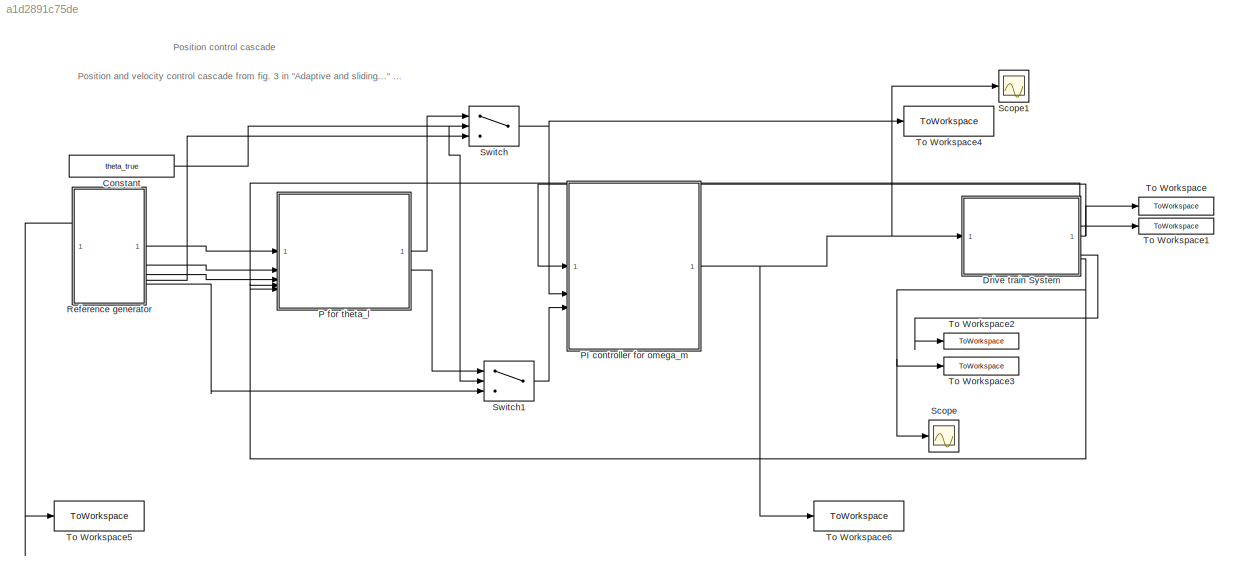
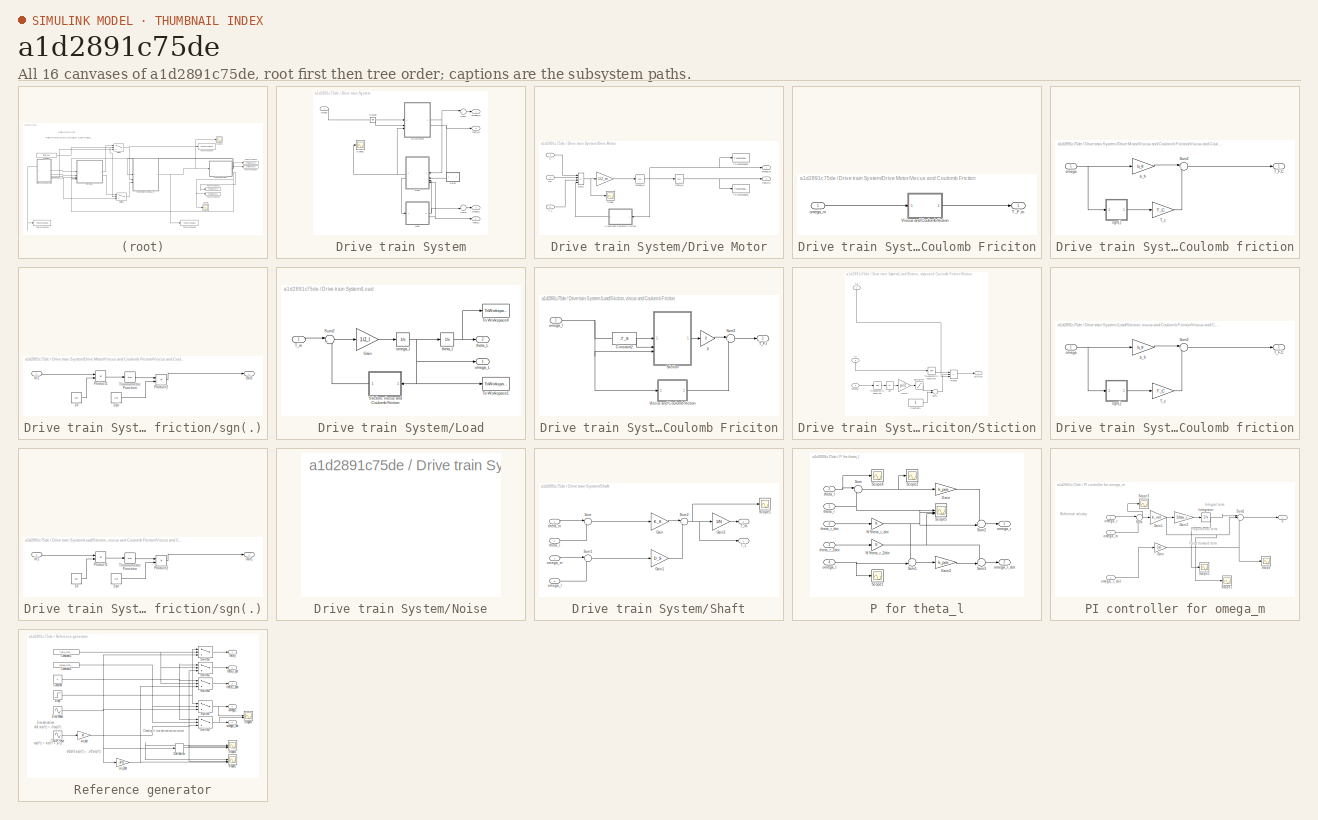
[diagram: thumbnail index - all 16 canvases of the model, root first then tree order]
MODEL slx_a1d2891c75de
KIND model
CONFIG AbsTol = auto
CONFIG EnableMultiTasking = off
CONFIG FixedStep = auto
CONFIG MaxStep = auto
CONFIG MinStep = auto
CONFIG RelTol = 1e-3
CONFIG SampleTimeConstraint = Unconstrained
CONFIG SolverName = VariableStepAuto
CONFIG StartTime = 0.0
CONFIG StopTime = 10
BLOCK [Constant] Constant
  Value = theta_true
BLOCK [SubSystem] Drive train System
BLOCK [SubSystem] Drive train System/Drive Motor
BLOCK [Gain] Drive train System/Drive Motor/              
  Gain = 1/J_m
BLOCK [Scope] Drive train System/Drive Motor/Scope
  Floating = off
  NumInputPorts = 1
  ScopeSpecificationString = Simulink.scopes.TimeScopeBlockCfg('CurrentConfiguration', extmgr.ConfigurationSet(extmgr.Configuration('Core','General UI',true),extmgr.Configuration('Core','Source UI',true),extmgr.Configuration('Sources','WiredSimulink',true,'DataLoggingVariableName','ScopeData2'),extmgr.Configuration('Visuals','Time Domain',true,'SerializedDisplays',{struct('MinYLimReal','-16806183694411934191745363487269729452...<+3818ch>
BLOCK [Sum] Drive train System/Drive Motor/Sum2
  IconShape = rectangular
  Inputs = ++--
BLOCK [Inport] Drive train System/Drive Motor/T_l
  Port = 3
BLOCK [ToWorkspace] Drive train System/Drive Motor/To Workspace1
  FixptAsFi = on
  MaxDataPoints = inf
  SampleTime = T_s
  SaveFormat = Timeseries
  VariableName = omega_m
BLOCK [ToWorkspace] Drive train System/Drive Motor/To Workspace2
  FixptAsFi = on
  MaxDataPoints = inf
  SampleTime = T_s
  SaveFormat = Timeseries
  VariableName = theta_m
BLOCK [SubSystem] Drive train System/Drive Motor/Viscus and Coulomb Friciton
BLOCK [Outport] Drive train System/Drive Motor/Viscus and Coulomb Friciton/T_F,m
BLOCK [SubSystem] Drive train System/Drive Motor/Viscus and Coulomb Friciton/Viscus and Coulomb friction
BLOCK [Sum] Drive train System/Drive Motor/Viscus and Coulomb Friciton/Viscus and Coulomb friction/Sum2
  Inputs = |++
BLOCK [Outport] Drive train System/Drive Motor/Viscus and Coulomb Friciton/Viscus and Coulomb friction/T_F,C
BLOCK [Gain] Drive train System/Drive Motor/Viscus and Coulomb Friciton/Viscus and Coulomb friction/T_c
  Gain = T_C
BLOCK [Gain] Drive train System/Drive Motor/Viscus and Coulomb Friciton/Viscus and Coulomb friction/b_fr
  Gain = b_fr
BLOCK [Inport] Drive train System/Drive Motor/Viscus and Coulomb Friciton/Viscus and Coulomb friction/omega
BLOCK [SubSystem] Drive train System/Drive Motor/Viscus and Coulomb Friciton/Viscus and Coulomb friction/sgn(.)
BLOCK [Constant] Drive train System/Drive Motor/Viscus and Coulomb Friciton/Viscus and Coulomb friction/sgn(.)/10
  Value = 100
BLOCK [Constant] Drive train System/Drive Motor/Viscus and Coulomb Friciton/Viscus and Coulomb friction/sgn(.)/2//pi
  Value = 2/pi
BLOCK [Inport] Drive train System/Drive Motor/Viscus and Coulomb Friciton/Viscus and Coulomb friction/sgn(.)/In1
BLOCK [Outport] Drive train System/Drive Motor/Viscus and Coulomb Friciton/Viscus and Coulomb friction/sgn(.)/Out1
BLOCK [Product] Drive train System/Drive Motor/Viscus and Coulomb Friciton/Viscus and Coulomb friction/sgn(.)/Product1
BLOCK [Product] Drive train System/Drive Motor/Viscus and Coulomb Friciton/Viscus and Coulomb friction/sgn(.)/Product2
BLOCK [Trigonometry] Drive train System/Drive Motor/Viscus and Coulomb Friciton/Viscus and Coulomb friction/sgn(.)/Trigonometric Function
  Operator = atan
  SampleTime = T_s
BLOCK [Inport] Drive train System/Drive Motor/Viscus and Coulomb Friciton/omega_m
BLOCK [Inport] Drive train System/Drive Motor/d_e
  Port = 2
BLOCK [Integrator] Drive train System/Drive Motor/omega_M
  InitialCondition = x_0(1)
BLOCK [Outport] Drive train System/Drive Motor/omega_m
BLOCK [Integrator] Drive train System/Drive Motor/theta_M
  InitialCondition = x_0(2)
BLOCK [Outport] Drive train System/Drive Motor/theta_m
  Port = 2
BLOCK [Inport] Drive train System/Drive Motor/u
BLOCK [Ground] Drive train System/Ground
BLOCK [SubSystem] Drive train System/Load
BLOCK [Gain] Drive train System/Load/Gain
  Gain = 1/J_l
BLOCK [SubSystem] Drive train System/Load/Stiction, viscus and Coulomb Friciton
BLOCK [Gain] Drive train System/Load/Stiction, viscus and Coulomb Friciton/0
  Gain = 0
BLOCK [Constant] Drive train System/Load/Stiction, viscus and Coulomb Friciton/Constant2
  Value = -T_S
BLOCK [SubSystem] Drive train System/Load/Stiction, viscus and Coulomb Friciton/Stiction
BLOCK [Abs] Drive train System/Load/Stiction, viscus and Coulomb Friciton/Stiction/Abs
  SaturateOnIntegerOverflow = off
BLOCK [Constant] Drive train System/Load/Stiction, viscus and Coulomb Friciton/Stiction/Constant3
BLOCK [Gain] Drive train System/Load/Stiction, viscus and Coulomb Friciton/Stiction/Gain2
  Gain = pi/2
BLOCK [Product] Drive train System/Load/Stiction, viscus and Coulomb Friciton/Stiction/Product
  Inputs = 3
BLOCK [Saturate] Drive train System/Load/Stiction, viscus and Coulomb Friciton/Stiction/Saturation
  LowerLimit = 0
  UpperLimit = 1
BLOCK [Outport] Drive train System/Load/Stiction, viscus and Coulomb Friciton/Stiction/Stiction
BLOCK [Sum] Drive train System/Load/Stiction, viscus and Coulomb Friciton/Stiction/Sum1
  Inputs = -+|
BLOCK [Inport] Drive train System/Load/Stiction, viscus and Coulomb Friciton/Stiction/T_S
  NameLocation = right
  Port = 2
BLOCK [Inport] Drive train System/Load/Stiction, viscus and Coulomb Friciton/Stiction/T_l
  NameLocation = right
  Port = 3
BLOCK [Trigonometry] Drive train System/Load/Stiction, viscus and Coulomb Friciton/Stiction/Trigonometric Function
  Operator = atan
BLOCK [Trigonometry] Drive train System/Load/Stiction, viscus and Coulomb Friciton/Stiction/Trigonometric Function1
  Operator = atan
BLOCK [Inport] Drive train System/Load/Stiction, viscus and Coulomb Friciton/Stiction/omega_l
BLOCK [Sum] Drive train System/Load/Stiction, viscus and Coulomb Friciton/Sum2
  Inputs = |++
BLOCK [Outport] Drive train System/Load/Stiction, viscus and Coulomb Friciton/T_F,l
BLOCK [SubSystem] Drive train System/Load/Stiction, viscus and Coulomb Friciton/Viscus and Coulomb friction
BLOCK [Sum] Drive train System/Load/Stiction, viscus and Coulomb Friciton/Viscus and Coulomb friction/Sum2
  Inputs = |++
BLOCK [Outport] Drive train System/Load/Stiction, viscus and Coulomb Friciton/Viscus and Coulomb friction/T_F,C
BLOCK [Gain] Drive train System/Load/Stiction, viscus and Coulomb Friciton/Viscus and Coulomb friction/T_c
  Gain = T_C
BLOCK [Gain] Drive train System/Load/Stiction, viscus and Coulomb Friciton/Viscus and Coulomb friction/b_fr
  Gain = b_fr
BLOCK [Inport] Drive train System/Load/Stiction, viscus and Coulomb Friciton/Viscus and Coulomb friction/omega
BLOCK [SubSystem] Drive train System/Load/Stiction, viscus and Coulomb Friciton/Viscus and Coulomb friction/sgn(.)
BLOCK [Constant] Drive train System/Load/Stiction, viscus and Coulomb Friciton/Viscus and Coulomb friction/sgn(.)/10
  Value = 100
BLOCK [Constant] Drive train System/Load/Stiction, viscus and Coulomb Friciton/Viscus and Coulomb friction/sgn(.)/2//pi
  Value = 2/pi
BLOCK [Inport] Drive train System/Load/Stiction, viscus and Coulomb Friciton/Viscus and Coulomb friction/sgn(.)/In1
BLOCK [Outport] Drive train System/Load/Stiction, viscus and Coulomb Friciton/Viscus and Coulomb friction/sgn(.)/Out1
BLOCK [Product] Drive train System/Load/Stiction, viscus and Coulomb Friciton/Viscus and Coulomb friction/sgn(.)/Product1
BLOCK [Product] Drive train System/Load/Stiction, viscus and Coulomb Friciton/Viscus and Coulomb friction/sgn(.)/Product2
BLOCK [Trigonometry] Drive train System/Load/Stiction, viscus and Coulomb Friciton/Viscus and Coulomb friction/sgn(.)/Trigonometric Function
  Operator = atan
  SampleTime = T_s
BLOCK [Inport] Drive train System/Load/Stiction, viscus and Coulomb Friciton/omega_l
BLOCK [Sum] Drive train System/Load/Sum2
  Inputs = |+-
BLOCK [Inport] Drive train System/Load/T_m
BLOCK [ToWorkspace] Drive train System/Load/To Workspace1
  FixptAsFi = on
  MaxDataPoints = inf
  SampleTime = T_log
  SaveFormat = Timeseries
  VariableName = omega_l
BLOCK [ToWorkspace] Drive train System/Load/To Workspace4
  FixptAsFi = on
  MaxDataPoints = inf
  SampleTime = T_log
  SaveFormat = Timeseries
  VariableName = theta_l
BLOCK [Outport] Drive train System/Load/omega_L
BLOCK [Integrator] Drive train System/Load/omega_l
  InitialCondition = x_l_0(1)
BLOCK [Outport] Drive train System/Load/theta_L
  Port = 2
BLOCK [Integrator] Drive train System/Load/theta_l
  InitialCondition = x_l_0(2)
BLOCK [SubSystem] Drive train System/Noise
BLOCK [Scope] Drive train System/Scope2
  Floating = off
  NumInputPorts = 1
  ScopeSpecificationString = C++SS(StrPVP('Location','[570, 307, 1567, 1011]'),StrPVP('Open','off'),MxPVP('AxesTitles',54,'struct(''axes1'',''%<SignalLabel>'')'),MxPVP('ScopeGraphics',57,'struct(''FigureColor'',''[0.5 0.5 0.5]'',''AxesColor'',''[0 0 0]'',''AxesTickColor'',''[1 1 1]'',''LineColors'',''[1 1 0;1 0 1;0 1 1;1 0 0;0 1 0;0 0 1]'',''LineStyles'',''-|-|-|-|-|-'',''LineWidths'',''[0.5 0.5 0.5 0.5 0.5 0.5]'',''MarkerSty...<+306ch>
BLOCK [SubSystem] Drive train System/Shaft
BLOCK [Gain] Drive train System/Shaft/Gain
  Gain = K_S
BLOCK [Gain] Drive train System/Shaft/Gain1
  Gain = D_S
BLOCK [Gain] Drive train System/Shaft/Gain2
  Gain = 1/N
BLOCK [Scope] Drive train System/Shaft/Scope1
  Floating = off
  NumInputPorts = 1
  ScopeSpecificationString = C++SS(StrPVP('Location','[566, 69, 1510, 1104]'),StrPVP('Open','off'),MxPVP('AxesTitles',54,'struct(''axes1'',''%<SignalLabel>'')'),MxPVP('ScopeGraphics',57,'struct(''FigureColor'',''[0.5 0.5 0.5]'',''AxesColor'',''[0 0 0]'',''AxesTickColor'',''[1 1 1]'',''LineColors'',''[1 1 0;1 0 1;0 1 1;1 0 0;0 1 0;0 0 1]'',''LineStyles'',''-|-|-|-|-|-'',''LineWidths'',''[2 2 2 2 2 2]'',''MarkerStyles'',''none|...<+280ch>
BLOCK [Sum] Drive train System/Shaft/Sum
  Inputs = |+-
BLOCK [Sum] Drive train System/Shaft/Sum1
  Inputs = |+-
BLOCK [Sum] Drive train System/Shaft/Sum2
  Inputs = |++
BLOCK [Outport] Drive train System/Shaft/T_L
BLOCK [Outport] Drive train System/Shaft/T_m
  Port = 2
BLOCK [Inport] Drive train System/Shaft/omega_l
  Port = 3
BLOCK [Inport] Drive train System/Shaft/omega_m
BLOCK [Inport] Drive train System/Shaft/theta_l
  Port = 4
BLOCK [Inport] Drive train System/Shaft/theta_m
  Port = 2
BLOCK [Sum] Drive train System/Sum1
  Inputs = |++
BLOCK [Sum] Drive train System/Sum3
  Inputs = ++|
BLOCK [Outport] Drive train System/omega_l
  Port = 3
BLOCK [Outport] Drive train System/omega_m
BLOCK [Outport] Drive train System/theta_l
  Port = 4
BLOCK [Outport] Drive train System/theta_m
  Port = 2
BLOCK [Inport] Drive train System/torque
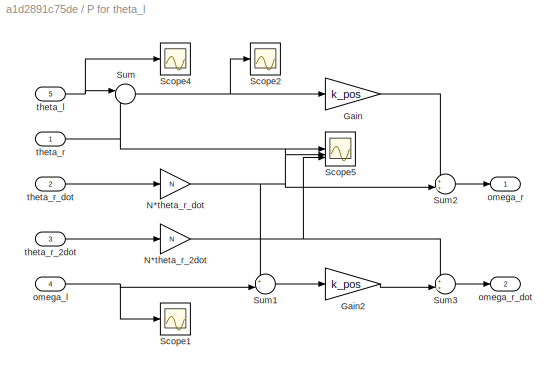
BLOCK [SubSystem] P for theta_l
BLOCK [Gain] P for theta_l/Gain
  Gain = k_pos
BLOCK [Gain] P for theta_l/Gain2
  Gain = k_pos
BLOCK [Gain] P for theta_l/N*theta_r_2dot
  Gain = N
BLOCK [Gain] P for theta_l/N*theta_r_dot
  Gain = N
BLOCK [Scope] P for theta_l/Scope1
  Floating = off
  NumInputPorts = 1
  ScopeSpecificationString = Simulink.scopes.TimeScopeBlockCfg('CurrentConfiguration', extmgr.ConfigurationSet(extmgr.Configuration('Core','General UI',true),extmgr.Configuration('Core','Source UI',true),extmgr.Configuration('Sources','WiredSimulink',true,'DataLoggingVariableName','ScopeData7'),extmgr.Configuration('Visuals','Time Domain',true,'SerializedDisplays',{struct('MinYLimReal','-1.31289','MaxYLimReal','1.83953','YLab...<+1433ch>
BLOCK [Scope] P for theta_l/Scope2
  Floating = off
  NumInputPorts = 1
  ScopeSpecificationString = Simulink.scopes.TimeScopeBlockCfg('CurrentConfiguration', extmgr.ConfigurationSet(extmgr.Configuration('Core','General UI',true),extmgr.Configuration('Core','Source UI',true),extmgr.Configuration('Sources','WiredSimulink',true,'DataLoggingVariableName','ScopeData4'),extmgr.Configuration('Visuals','Time Domain',true,'SerializedDisplays',{struct('MinYLimReal','-0.17751','MaxYLimReal','0.24618','YLab...<+1429ch>
BLOCK [Scope] P for theta_l/Scope4
  Floating = off
  NumInputPorts = 1
  ScopeSpecificationString = Simulink.scopes.TimeScopeBlockCfg('CurrentConfiguration', extmgr.ConfigurationSet(extmgr.Configuration('Core','General UI',true),extmgr.Configuration('Core','Source UI',true),extmgr.Configuration('Sources','WiredSimulink',true,'DataLoggingVariableName','ScopeData7'),extmgr.Configuration('Visuals','Time Domain',true,'SerializedDisplays',{struct('MinYLimReal','-1.28636','MaxYLimReal','1.37961','YLab...<+1433ch>
BLOCK [Scope] P for theta_l/Scope5
  Floating = off
  NumInputPorts = 3
  ScopeSpecificationString = Simulink.scopes.TimeScopeBlockCfg('CurrentConfiguration', extmgr.ConfigurationSet(extmgr.Configuration('Core','General UI',true),extmgr.Configuration('Core','Source UI',true),extmgr.Configuration('Sources','WiredSimulink',true,'DataLoggingVariableName','ScopeData8'),extmgr.Configuration('Visuals','Time Domain',true,'SerializedDisplays',{struct('MinYLimReal','-0.125','MaxYLimReal','1.125','YLabelRe...<+1471ch>
BLOCK [Sum] P for theta_l/Sum
  Inputs = |-+
BLOCK [Sum] P for theta_l/Sum1
  Inputs = +-|
BLOCK [Sum] P for theta_l/Sum2
  Inputs = ++|
BLOCK [Sum] P for theta_l/Sum3
  Inputs = ++|
BLOCK [Inport] P for theta_l/omega_l
  Port = 4
BLOCK [Outport] P for theta_l/omega_r
BLOCK [Outport] P for theta_l/omega_r_dot
  Port = 2
BLOCK [Inport] P for theta_l/theta_l
  Port = 5
BLOCK [Inport] P for theta_l/theta_r
BLOCK [Inport] P for theta_l/theta_r_2dot
  Port = 3
BLOCK [Inport] P for theta_l/theta_r_dot
  Port = 2
BLOCK [SubSystem] PI controller for omega_m
BLOCK [Gain] PI controller for omega_m/Gain
  Gain = J_m
BLOCK [Gain] PI controller for omega_m/Gain1
  Gain = k_vel
BLOCK [Gain] PI controller for omega_m/Gain2
  Gain = 1/tau_i
BLOCK [Integrator] PI controller for omega_m/Integrator
BLOCK [Scope] PI controller for omega_m/Scope
  Floating = off
  NumInputPorts = 1
  ScopeSpecificationString = Simulink.scopes.TimeScopeBlockCfg('CurrentConfiguration', extmgr.ConfigurationSet(extmgr.Configuration('Core','General UI',true),extmgr.Configuration('Core','Source UI',true),extmgr.Configuration('Sources','WiredSimulink',true,'DataLoggingVariableName','ScopeData3'),extmgr.Configuration('Visuals','Time Domain',true,'SerializedDisplays',{struct('MinYLimReal','-1.00000','MaxYLimReal','1.00000','YLab...<+1405ch>
BLOCK [Scope] PI controller for omega_m/Scope1
  Floating = off
  NumInputPorts = 1
  ScopeSpecificationString = Simulink.scopes.TimeScopeBlockCfg('CurrentConfiguration', extmgr.ConfigurationSet(extmgr.Configuration('Core','General UI',true),extmgr.Configuration('Core','Source UI',true),extmgr.Configuration('Sources','WiredSimulink',true,'DataLoggingVariableName','ScopeData5'),extmgr.Configuration('Visuals','Time Domain',true,'SerializedDisplays',{struct('MinYLimReal','-2.95027','MaxYLimReal','3.60195','YLab...<+1411ch>
BLOCK [Scope] PI controller for omega_m/Scope2
  Floating = off
  NumInputPorts = 1
  ScopeSpecificationString = Simulink.scopes.TimeScopeBlockCfg('CurrentConfiguration', extmgr.ConfigurationSet(extmgr.Configuration('Core','General UI',true),extmgr.Configuration('Core','Source UI',true),extmgr.Configuration('Sources','WiredSimulink',true,'DataLoggingVariableName','ScopeData6'),extmgr.Configuration('Visuals','Time Domain',true,'SerializedDisplays',{struct('MinYLimReal','-0.6819','MaxYLimReal','1.07577','YLabe...<+1403ch>
BLOCK [Scope] PI controller for omega_m/Scope3
  Floating = off
  NumInputPorts = 1
  ScopeSpecificationString = Simulink.scopes.TimeScopeBlockCfg('CurrentConfiguration', extmgr.ConfigurationSet(extmgr.Configuration('Core','General UI',true),extmgr.Configuration('Core','Source UI',true),extmgr.Configuration('Sources','WiredSimulink',true,'DataLoggingVariableName','ScopeData7'),extmgr.Configuration('Visuals','Time Domain',true,'SerializedDisplays',{struct('MinYLimReal','-0.75767','MaxYLimReal','1.1953','YLabe...<+1444ch>
BLOCK [Sum] PI controller for omega_m/Sum
  Inputs = |+-
BLOCK [Sum] PI controller for omega_m/Sum1
  Inputs = |+++
BLOCK [Inport] PI controller for omega_m/omega_m
BLOCK [Inport] PI controller for omega_m/omega_r
  Port = 2
BLOCK [Inport] PI controller for omega_m/omega_r_dot
  Port = 3
BLOCK [Outport] PI controller for omega_m/u
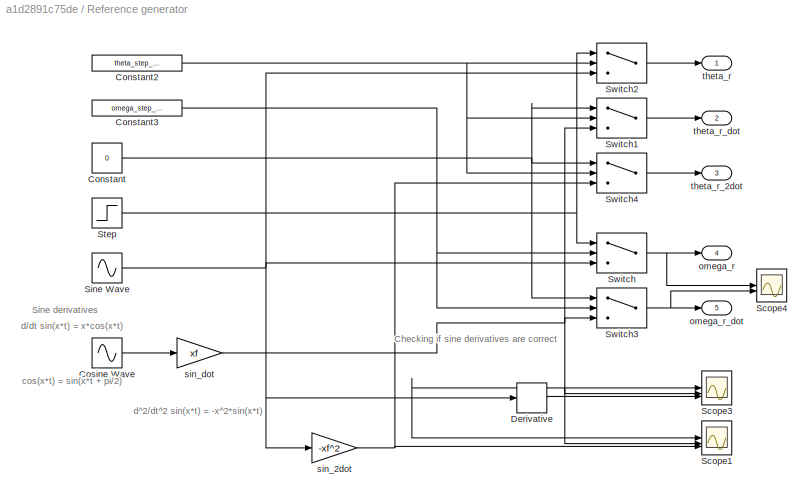
BLOCK [SubSystem] Reference generator
BLOCK [Constant] Reference generator/Constant
  Value = 0
BLOCK [Constant] Reference generator/Constant2
  Value = theta_step_true
BLOCK [Constant] Reference generator/Constant3
  Value = omega_step_true
BLOCK [Sin] Reference generator/Cosine Wave
  Frequency = xf
  Phase = pi/2
  SampleTime = 0
BLOCK [Derivative] Reference generator/Derivative
  CoefficientInTFapproximation = 1/100
BLOCK [Scope] Reference generator/Scope1
  Floating = off
  NumInputPorts = 3
  ScopeSpecificationString = Simulink.scopes.TimeScopeBlockCfg('CurrentConfiguration', extmgr.ConfigurationSet(extmgr.Configuration('Core','General UI',true),extmgr.Configuration('Core','Source UI',true),extmgr.Configuration('Sources','WiredSimulink',true,'DataLoggingVariableName','ScopeData2'),extmgr.Configuration('Visuals','Time Domain',true,'SerializedDisplays',{struct('MinYLimReal','-1.25','MaxYLimReal','1.25','YLabelReal...<+1455ch>
BLOCK [Scope] Reference generator/Scope3
  Floating = off
  NumInputPorts = 3
  ScopeSpecificationString = Simulink.scopes.TimeScopeBlockCfg('CurrentConfiguration', extmgr.ConfigurationSet(extmgr.Configuration('Core','General UI',true),extmgr.Configuration('Core','Source UI',true),extmgr.Configuration('Sources','WiredSimulink',true,'DataLoggingVariableName','ScopeData3'),extmgr.Configuration('Visuals','Time Domain',true,'SerializedDisplays',{struct('MinYLimReal','-1.25','MaxYLimReal','1.25','YLabelReal...<+1457ch>
BLOCK [Scope] Reference generator/Scope4
  Floating = off
  NumInputPorts = 2
  ScopeSpecificationString = Simulink.scopes.TimeScopeBlockCfg('CurrentConfiguration', extmgr.ConfigurationSet(extmgr.Configuration('Core','General UI',true),extmgr.Configuration('Core','Source UI',true),extmgr.Configuration('Sources','WiredSimulink',true,'DataLoggingVariableName','ScopeData1'),extmgr.Configuration('Visuals','Time Domain',true,'SerializedDisplays',{struct('MinYLimReal','-1.25','MaxYLimReal','1.25','YLabelReal...<+1512ch>
BLOCK [Sin] Reference generator/Sine Wave
  Frequency = xf
  SampleTime = 0
BLOCK [Step] Reference generator/Step
  SampleTime = 0
BLOCK [Switch] Reference generator/Switch
  Criteria = u2 > Threshold
  InputSameDT = off
  SaturateOnIntegerOverflow = off
BLOCK [Switch] Reference generator/Switch1
  Criteria = u2 > Threshold
  InputSameDT = off
  SaturateOnIntegerOverflow = off
BLOCK [Switch] Reference generator/Switch2
  Criteria = u2 > Threshold
  InputSameDT = off
  SaturateOnIntegerOverflow = off
BLOCK [Switch] Reference generator/Switch3
  Criteria = u2 > Threshold
  InputSameDT = off
  SaturateOnIntegerOverflow = off
BLOCK [Switch] Reference generator/Switch4
  Criteria = u2 > Threshold
  InputSameDT = off
  SaturateOnIntegerOverflow = off
BLOCK [Outport] Reference generator/omega_r
  Port = 4
BLOCK [Outport] Reference generator/omega_r_dot
  Port = 5
BLOCK [Gain] Reference generator/sin_2dot
  Gain = -xf^2
BLOCK [Gain] Reference generator/sin_dot
  Gain = xf
BLOCK [Outport] Reference generator/theta_r
BLOCK [Outport] Reference generator/theta_r_2dot
  Port = 3
BLOCK [Outport] Reference generator/theta_r_dot
  Port = 2
BLOCK [Scope] Scope
  Floating = off
  NumInputPorts = 1
  ScopeSpecificationString = Simulink.scopes.TimeScopeBlockCfg('CurrentConfiguration', extmgr.ConfigurationSet(extmgr.Configuration('Core','General UI',true),extmgr.Configuration('Core','Source UI',true),extmgr.Configuration('Sources','WiredSimulink',true,'DataLoggingVariableName','ScopeData1'),extmgr.Configuration('Visuals','Time Domain',true,'SerializedDisplays',{struct('MinYLimReal','-1.25138','MaxYLimReal','1.25138','YLab...<+1466ch>
BLOCK [Scope] Scope1
  Floating = off
  NumInputPorts = 1
  ScopeSpecificationString = Simulink.scopes.TimeScopeBlockCfg('CurrentConfiguration', extmgr.ConfigurationSet(extmgr.Configuration('Core','General UI',true),extmgr.Configuration('Core','Source UI',true),extmgr.Configuration('Sources','WiredSimulink',true,'DataLoggingVariableName','ScopeData1'),extmgr.Configuration('Visuals','Time Domain',true,'SerializedDisplays',{struct('MinYLimReal','-0.11695','MaxYLimReal','0.56474','YLab...<+1426ch>
BLOCK [Switch] Switch
  Criteria = u2 > Threshold
  InputSameDT = off
  SaturateOnIntegerOverflow = off
BLOCK [Switch] Switch1
  Criteria = u2 > Threshold
  InputSameDT = off
  SaturateOnIntegerOverflow = off
BLOCK [ToWorkspace] To Workspace
  FixptAsFi = on
  MaxDataPoints = inf
  SampleTime = -1
  SaveFormat = Timeseries
  VariableName = omega_m_out
BLOCK [ToWorkspace] To Workspace1
  FixptAsFi = on
  MaxDataPoints = inf
  SampleTime = -1
  SaveFormat = Timeseries
  VariableName = theta_m_out
BLOCK [ToWorkspace] To Workspace2
  FixptAsFi = on
  MaxDataPoints = inf
  SampleTime = -1
  SaveFormat = Timeseries
  VariableName = omega_l_out
BLOCK [ToWorkspace] To Workspace3
  FixptAsFi = on
  MaxDataPoints = inf
  SampleTime = -1
  SaveFormat = Timeseries
  VariableName = theta_l_out
BLOCK [ToWorkspace] To Workspace4
  FixptAsFi = on
  MaxDataPoints = inf
  SampleTime = -1
  SaveFormat = Timeseries
  VariableName = omega_r_out
BLOCK [ToWorkspace] To Workspace5
  FixptAsFi = on
  MaxDataPoints = inf
  SampleTime = -1
  SaveFormat = Timeseries
  VariableName = theta_r_out
BLOCK [ToWorkspace] To Workspace6
  FixptAsFi = on
  MaxDataPoints = inf
  SampleTime = -1
  SaveFormat = Timeseries
  VariableName = u_out
ANNOTATION (root): Position and velocity control cascade from fig. 3 in "Adaptive and sliding..." file.
ANNOTATION (root): Position control cascade
ANNOTATION PI controller for omega_m: Feed-forward term
ANNOTATION PI controller for omega_m: Integral term
ANNOTATION PI controller for omega_m: Proportional term
ANNOTATION PI controller for omega_m: Reference velocity
ANNOTATION Reference generator: Checking if sine derivatives are correct
ANNOTATION Reference generator: Sine derivatives
ANNOTATION Reference generator: d/dt sin(x*t) = x*cos(x*t) cos(x*t) = sin(x*t + pi/2)
ANNOTATION Reference generator: d^2/dt^2 sin(x*t) = -x^2*sin(x*t)
NET Constant:1 -> Switch1:2, Switch:2
LINE Drive train System/Drive Motor/              :1 -> Drive train System/Drive Motor/omega_M:1
NET Drive train System/Drive Motor/Sum2:1 -> Drive train System/Drive Motor/              :1, Drive train System/Drive Motor/Scope:1
LINE Drive train System/Drive Motor/T_l:1 -> Drive train System/Drive Motor/Sum2:3
LINE Drive train System/Drive Motor/Viscus and Coulomb Friciton/Viscus and Coulomb friction/Sum2:1 -> Drive train System/Drive Motor/Viscus and Coulomb Friciton/Viscus and Coulomb friction/T_F,C:1
LINE Drive train System/Drive Motor/Viscus and Coulomb Friciton/Viscus and Coulomb friction/T_c:1 -> Drive train System/Drive Motor/Viscus and Coulomb Friciton/Viscus and Coulomb friction/Sum2:2
LINE Drive train System/Drive Motor/Viscus and Coulomb Friciton/Viscus and Coulomb friction/b_fr:1 -> Drive train System/Drive Motor/Viscus and Coulomb Friciton/Viscus and Coulomb friction/Sum2:1
NET Drive train System/Drive Motor/Viscus and Coulomb Friciton/Viscus and Coulomb friction/omega:1 -> Drive train System/Drive Motor/Viscus and Coulomb Friciton/Viscus and Coulomb friction/b_fr:1, Drive train System/Drive Motor/Viscus and Coulomb Friciton/Viscus and Coulomb friction/sgn(.):1
LINE Drive train System/Drive Motor/Viscus and Coulomb Friciton/Viscus and Coulomb friction/sgn(.)/10:1 -> Drive train System/Drive Motor/Viscus and Coulomb Friciton/Viscus and Coulomb friction/sgn(.)/Product1:2
LINE Drive train System/Drive Motor/Viscus and Coulomb Friciton/Viscus and Coulomb friction/sgn(.)/2//pi:1 -> Drive train System/Drive Motor/Viscus and Coulomb Friciton/Viscus and Coulomb friction/sgn(.)/Product2:2
LINE Drive train System/Drive Motor/Viscus and Coulomb Friciton/Viscus and Coulomb friction/sgn(.)/In1:1 -> Drive train System/Drive Motor/Viscus and Coulomb Friciton/Viscus and Coulomb friction/sgn(.)/Product1:1
LINE Drive train System/Drive Motor/Viscus and Coulomb Friciton/Viscus and Coulomb friction/sgn(.)/Product1:1 -> Drive train System/Drive Motor/Viscus and Coulomb Friciton/Viscus and Coulomb friction/sgn(.)/Trigonometric Function:1
LINE Drive train System/Drive Motor/Viscus and Coulomb Friciton/Viscus and Coulomb friction/sgn(.)/Product2:1 -> Drive train System/Drive Motor/Viscus and Coulomb Friciton/Viscus and Coulomb friction/sgn(.)/Out1:1
LINE Drive train System/Drive Motor/Viscus and Coulomb Friciton/Viscus and Coulomb friction/sgn(.)/Trigonometric Function:1 -> Drive train System/Drive Motor/Viscus and Coulomb Friciton/Viscus and Coulomb friction/sgn(.)/Product2:1
LINE Drive train System/Drive Motor/Viscus and Coulomb Friciton/Viscus and Coulomb friction/sgn(.):1 -> Drive train System/Drive Motor/Viscus and Coulomb Friciton/Viscus and Coulomb friction/T_c:1
LINE Drive train System/Drive Motor/Viscus and Coulomb Friciton/Viscus and Coulomb friction:1 -> Drive train System/Drive Motor/Viscus and Coulomb Friciton/T_F,m:1
LINE Drive train System/Drive Motor/Viscus and Coulomb Friciton/omega_m:1 -> Drive train System/Drive Motor/Viscus and Coulomb Friciton/Viscus and Coulomb friction:1
LINE Drive train System/Drive Motor/Viscus and Coulomb Friciton:1 -> Drive train System/Drive Motor/Sum2:4
LINE Drive train System/Drive Motor/d_e:1 -> Drive train System/Drive Motor/Sum2:2
NET Drive train System/Drive Motor/omega_M:1 -> Drive train System/Drive Motor/To Workspace1:1, Drive train System/Drive Motor/Viscus and Coulomb Friciton:1, Drive train System/Drive Motor/omega_m:1, Drive train System/Drive Motor/theta_M:1
NET Drive train System/Drive Motor/theta_M:1 -> Drive train System/Drive Motor/To Workspace2:1, Drive train System/Drive Motor/theta_m:1
LINE Drive train System/Drive Motor/u:1 -> Drive train System/Drive Motor/Sum2:1
NET Drive train System/Drive Motor:1 -> Drive train System/Shaft:1, Drive train System/Sum1:1
NET Drive train System/Drive Motor:2 -> Drive train System/Shaft:2, Drive train System/theta_m:1
LINE Drive train System/Ground:1 -> Drive train System/Drive Motor:2
LINE Drive train System/Load/Gain:1 -> Drive train System/Load/omega_l:1
LINE Drive train System/Load/Stiction, viscus and Coulomb Friciton/0:1 -> Drive train System/Load/Stiction, viscus and Coulomb Friciton/Sum2:1
LINE Drive train System/Load/Stiction, viscus and Coulomb Friciton/Constant2:1 -> Drive train System/Load/Stiction, viscus and Coulomb Friciton/Stiction:2
LINE Drive train System/Load/Stiction, viscus and Coulomb Friciton/Stiction/Abs:1 -> Drive train System/Load/Stiction, viscus and Coulomb Friciton/Stiction/Gain2:1
LINE Drive train System/Load/Stiction, viscus and Coulomb Friciton/Stiction/Constant3:1 -> Drive train System/Load/Stiction, viscus and Coulomb Friciton/Stiction/Sum1:2
LINE Drive train System/Load/Stiction, viscus and Coulomb Friciton/Stiction/Gain2:1 -> Drive train System/Load/Stiction, viscus and Coulomb Friciton/Stiction/Saturation:1
LINE Drive train System/Load/Stiction, viscus and Coulomb Friciton/Stiction/Product:1 -> Drive train System/Load/Stiction, viscus and Coulomb Friciton/Stiction/Stiction:1
LINE Drive train System/Load/Stiction, viscus and Coulomb Friciton/Stiction/Saturation:1 -> Drive train System/Load/Stiction, viscus and Coulomb Friciton/Stiction/Sum1:1
LINE Drive train System/Load/Stiction, viscus and Coulomb Friciton/Stiction/Sum1:1 -> Drive train System/Load/Stiction, viscus and Coulomb Friciton/Stiction/Product:2
LINE Drive train System/Load/Stiction, viscus and Coulomb Friciton/Stiction/T_S:1 -> Drive train System/Load/Stiction, viscus and Coulomb Friciton/Stiction/Product:3
LINE Drive train System/Load/Stiction, viscus and Coulomb Friciton/Stiction/T_l:1 -> Drive train System/Load/Stiction, viscus and Coulomb Friciton/Stiction/Trigonometric Function1:1
LINE Drive train System/Load/Stiction, viscus and Coulomb Friciton/Stiction/Trigonometric Function1:1 -> Drive train System/Load/Stiction, viscus and Coulomb Friciton/Stiction/Product:1
LINE Drive train System/Load/Stiction, viscus and Coulomb Friciton/Stiction/Trigonometric Function:1 -> Drive train System/Load/Stiction, viscus and Coulomb Friciton/Stiction/Abs:1
LINE Drive train System/Load/Stiction, viscus and Coulomb Friciton/Stiction/omega_l:1 -> Drive train System/Load/Stiction, viscus and Coulomb Friciton/Stiction/Trigonometric Function:1
LINE Drive train System/Load/Stiction, viscus and Coulomb Friciton/Stiction:1 -> Drive train System/Load/Stiction, viscus and Coulomb Friciton/0:1
LINE Drive train System/Load/Stiction, viscus and Coulomb Friciton/Sum2:1 -> Drive train System/Load/Stiction, viscus and Coulomb Friciton/T_F,l:1
LINE Drive train System/Load/Stiction, viscus and Coulomb Friciton/Viscus and Coulomb friction/Sum2:1 -> Drive train System/Load/Stiction, viscus and Coulomb Friciton/Viscus and Coulomb friction/T_F,C:1
LINE Drive train System/Load/Stiction, viscus and Coulomb Friciton/Viscus and Coulomb friction/T_c:1 -> Drive train System/Load/Stiction, viscus and Coulomb Friciton/Viscus and Coulomb friction/Sum2:2
LINE Drive train System/Load/Stiction, viscus and Coulomb Friciton/Viscus and Coulomb friction/b_fr:1 -> Drive train System/Load/Stiction, viscus and Coulomb Friciton/Viscus and Coulomb friction/Sum2:1
NET Drive train System/Load/Stiction, viscus and Coulomb Friciton/Viscus and Coulomb friction/omega:1 -> Drive train System/Load/Stiction, viscus and Coulomb Friciton/Viscus and Coulomb friction/b_fr:1, Drive train System/Load/Stiction, viscus and Coulomb Friciton/Viscus and Coulomb friction/sgn(.):1
LINE Drive train System/Load/Stiction, viscus and Coulomb Friciton/Viscus and Coulomb friction/sgn(.)/10:1 -> Drive train System/Load/Stiction, viscus and Coulomb Friciton/Viscus and Coulomb friction/sgn(.)/Product1:2
LINE Drive train System/Load/Stiction, viscus and Coulomb Friciton/Viscus and Coulomb friction/sgn(.)/2//pi:1 -> Drive train System/Load/Stiction, viscus and Coulomb Friciton/Viscus and Coulomb friction/sgn(.)/Product2:2
LINE Drive train System/Load/Stiction, viscus and Coulomb Friciton/Viscus and Coulomb friction/sgn(.)/In1:1 -> Drive train System/Load/Stiction, viscus and Coulomb Friciton/Viscus and Coulomb friction/sgn(.)/Product1:1
LINE Drive train System/Load/Stiction, viscus and Coulomb Friciton/Viscus and Coulomb friction/sgn(.)/Product1:1 -> Drive train System/Load/Stiction, viscus and Coulomb Friciton/Viscus and Coulomb friction/sgn(.)/Trigonometric Function:1
LINE Drive train System/Load/Stiction, viscus and Coulomb Friciton/Viscus and Coulomb friction/sgn(.)/Product2:1 -> Drive train System/Load/Stiction, viscus and Coulomb Friciton/Viscus and Coulomb friction/sgn(.)/Out1:1
LINE Drive train System/Load/Stiction, viscus and Coulomb Friciton/Viscus and Coulomb friction/sgn(.)/Trigonometric Function:1 -> Drive train System/Load/Stiction, viscus and Coulomb Friciton/Viscus and Coulomb friction/sgn(.)/Product2:1
LINE Drive train System/Load/Stiction, viscus and Coulomb Friciton/Viscus and Coulomb friction/sgn(.):1 -> Drive train System/Load/Stiction, viscus and Coulomb Friciton/Viscus and Coulomb friction/T_c:1
LINE Drive train System/Load/Stiction, viscus and Coulomb Friciton/Viscus and Coulomb friction:1 -> Drive train System/Load/Stiction, viscus and Coulomb Friciton/Sum2:2
NET Drive train System/Load/Stiction, viscus and Coulomb Friciton/omega_l:1 -> Drive train System/Load/Stiction, viscus and Coulomb Friciton/Stiction:1, Drive train System/Load/Stiction, viscus and Coulomb Friciton/Stiction:3, Drive train System/Load/Stiction, viscus and Coulomb Friciton/Viscus and Coulomb friction:1
LINE Drive train System/Load/Stiction, viscus and Coulomb Friciton:1 -> Drive train System/Load/Sum2:2
LINE Drive train System/Load/Sum2:1 -> Drive train System/Load/Gain:1
LINE Drive train System/Load/T_m:1 -> Drive train System/Load/Sum2:1
NET Drive train System/Load/omega_l:1 -> Drive train System/Load/Stiction, viscus and Coulomb Friciton:1, Drive train System/Load/To Workspace1:1, Drive train System/Load/omega_L:1, Drive train System/Load/theta_l:1
NET Drive train System/Load/theta_l:1 -> Drive train System/Load/To Workspace4:1, Drive train System/Load/theta_L:1
NET Drive train System/Load:1 -> Drive train System/Shaft:3, Drive train System/Sum3:2
NET Drive train System/Load:2 -> Drive train System/Shaft:4, Drive train System/theta_l:1
LINE Drive train System/Shaft/Gain1:1 -> Drive train System/Shaft/Sum2:2
LINE Drive train System/Shaft/Gain2:1 -> Drive train System/Shaft/T_m:1
LINE Drive train System/Shaft/Gain:1 -> Drive train System/Shaft/Sum2:1
LINE Drive train System/Shaft/Sum1:1 -> Drive train System/Shaft/Gain1:1
NET Drive train System/Shaft/Sum2:1 -> Drive train System/Shaft/Gain2:1, Drive train System/Shaft/Scope1:1, Drive train System/Shaft/T_L:1
LINE Drive train System/Shaft/Sum:1 -> Drive train System/Shaft/Gain:1
LINE Drive train System/Shaft/omega_l:1 -> Drive train System/Shaft/Sum1:2
LINE Drive train System/Shaft/omega_m:1 -> Drive train System/Shaft/Sum1:1
LINE Drive train System/Shaft/theta_l:1 -> Drive train System/Shaft/Sum:2
LINE Drive train System/Shaft/theta_m:1 -> Drive train System/Shaft/Sum:1
NET Drive train System/Shaft:1 -> Drive train System/Drive Motor:3, Drive train System/Scope2:1
LINE Drive train System/Shaft:2 -> Drive train System/Load:1
LINE Drive train System/Sum1:1 -> Drive train System/omega_m:1
LINE Drive train System/Sum3:1 -> Drive train System/omega_l:1
LINE Drive train System/torque:1 -> Drive train System/Drive Motor:1
NET Drive train System:1 -> PI controller for omega_m:1, To Workspace:1
LINE Drive train System:2 -> To Workspace1:1
NET Drive train System:3 -> P for theta_l:4, To Workspace2:1
NET Drive train System:4 -> P for theta_l:5, Scope:1, To Workspace3:1
LINE P for theta_l/Gain2:1 -> P for theta_l/Sum3:2
LINE P for theta_l/Gain:1 -> P for theta_l/Sum2:1
NET P for theta_l/N*theta_r_2dot:1 -> P for theta_l/Scope5:3, P for theta_l/Sum3:1
NET P for theta_l/N*theta_r_dot:1 -> P for theta_l/Scope5:2, P for theta_l/Sum1:1, P for theta_l/Sum2:2
LINE P for theta_l/Sum1:1 -> P for theta_l/Gain2:1
LINE P for theta_l/Sum2:1 -> P for theta_l/omega_r:1
LINE P for theta_l/Sum3:1 -> P for theta_l/omega_r_dot:1
NET P for theta_l/Sum:1 -> P for theta_l/Gain:1, P for theta_l/Scope2:1
NET P for theta_l/omega_l:1 -> P for theta_l/Scope1:1, P for theta_l/Sum1:2
NET P for theta_l/theta_l:1 -> P for theta_l/Scope4:1, P for theta_l/Sum:1
NET P for theta_l/theta_r:1 -> P for theta_l/Scope5:1, P for theta_l/Sum:2
LINE P for theta_l/theta_r_2dot:1 -> P for theta_l/N*theta_r_2dot:1
LINE P for theta_l/theta_r_dot:1 -> P for theta_l/N*theta_r_dot:1
LINE P for theta_l:1 -> Switch:1
LINE P for theta_l:2 -> Switch1:1
NET PI controller for omega_m/Gain1:1 -> PI controller for omega_m/Gain2:1, PI controller for omega_m/Scope2:1, PI controller for omega_m/Sum1:2
LINE PI controller for omega_m/Gain2:1 -> PI controller for omega_m/Integrator:1
NET PI controller for omega_m/Gain:1 -> PI controller for omega_m/Scope:1, PI controller for omega_m/Sum1:3
NET PI controller for omega_m/Integrator:1 -> PI controller for omega_m/Scope1:1, PI controller for omega_m/Sum1:1
LINE PI controller for omega_m/Sum1:1 -> PI controller for omega_m/u:1
NET PI controller for omega_m/Sum:1 -> PI controller for omega_m/Gain1:1, PI controller for omega_m/Scope3:1
LINE PI controller for omega_m/omega_m:1 -> PI controller for omega_m/Sum:2
LINE PI controller for omega_m/omega_r:1 -> PI controller for omega_m/Sum:1
LINE PI controller for omega_m/omega_r_dot:1 -> PI controller for omega_m/Gain:1
NET PI controller for omega_m:1 -> Drive train System:1, Scope1:1, To Workspace6:1
NET Reference generator/Constant2:1 -> Reference generator/Switch1:2, Reference generator/Switch2:2, Reference generator/Switch4:2
NET Reference generator/Constant3:1 -> Reference generator/Switch3:2, Reference generator/Switch:2
NET Reference generator/Constant:1 -> Reference generator/Switch1:1, Reference generator/Switch3:1, Reference generator/Switch4:1
LINE Reference generator/Cosine Wave:1 -> Reference generator/sin_dot:1
LINE Reference generator/Derivative:1 -> Reference generator/Scope3:3
NET Reference generator/Sine Wave:1 -> Reference generator/Derivative:1, Reference generator/Scope1:1, Reference generator/Scope3:1, Reference generator/Switch2:3, Reference generator/Switch:3, Reference generator/sin_2dot:1
NET Reference generator/Step:1 -> Reference generator/Switch2:1, Reference generator/Switch:1
LINE Reference generator/Switch1:1 -> Reference generator/theta_r_dot:1
LINE Reference generator/Switch2:1 -> Reference generator/theta_r:1
NET Reference generator/Switch3:1 -> Reference generator/Scope4:2, Reference generator/omega_r_dot:1
LINE Reference generator/Switch4:1 -> Reference generator/theta_r_2dot:1
NET Reference generator/Switch:1 -> Reference generator/Scope4:1, Reference generator/omega_r:1
NET Reference generator/sin_2dot:1 -> Reference generator/Scope1:3, Reference generator/Switch4:3
NET Reference generator/sin_dot:1 -> Reference generator/Scope1:2, Reference generator/Scope3:2, Reference generator/Switch1:3, Reference generator/Switch3:3
NET Reference generator:1 -> P for theta_l:1, To Workspace5:1
LINE Reference generator:2 -> P for theta_l:2
LINE Reference generator:3 -> P for theta_l:3
LINE Reference generator:4 -> Switch:3
LINE Reference generator:5 -> Switch1:3
LINE Switch1:1 -> PI controller for omega_m:3
NET Switch:1 -> PI controller for omega_m:2, To Workspace4:1
note: NET lines group one-source signal fan-out (src -> all destinations, sorted); 1:1 wires keep LINE
